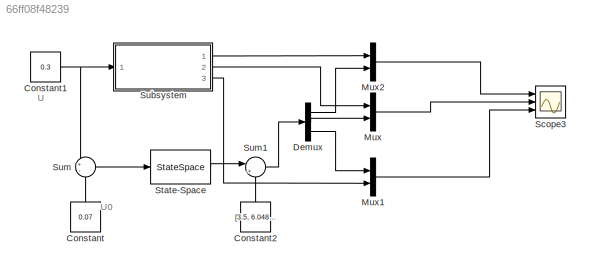
MODEL slx_66ff08f48239
KIND model
CONFIG AbsTol = auto
CONFIG EnableMultiTasking = off
CONFIG FixedStep = 0.148852529274642
CONFIG MaxStep = auto
CONFIG MinStep = auto
CONFIG RelTol = 1e-3
CONFIG SampleTimeConstraint = Unconstrained
CONFIG SolverName = VariableStepAuto
CONFIG StartTime = 0.0
CONFIG StopTime = 100
WORKSPACE source: mxarray member
WORKSPACE ca = 0.02
WORKSPACE cb = 0.2
WORKSPACE ea = 0.06
WORKSPACE eb = 0.02
WORKSPACE pa = 6.5
WORKSPACE pb = 6.5
WORKSPACE u = 0.105
WORKSPACE v = 7.5
BLOCK [Constant] Constant
  NameLocation = right
  Value = 0.07
BLOCK [Constant] Constant1
  Value = 0.3
BLOCK [Constant] Constant2
  NameLocation = right
  Value = [3.5, 6.0487, 0.4513]
BLOCK [Demux] Demux
  Outputs = 3
  Ports = [1, 3]
BLOCK [Mux] Mux
  DisplayOption = bar
  Inputs = 2
  Ports = [2, 1]
BLOCK [Mux] Mux1
  DisplayOption = bar
  Inputs = 2
  Ports = [2, 1]
BLOCK [Mux] Mux2
  DisplayOption = bar
  Inputs = 2
  Ports = [2, 1]
BLOCK [Scope] Scope3
  Floating = off
  NumInputPorts = 3
  Ports = [3]
  ScopeSpecificationString = Simulink.scopes.TimeScopeBlockCfg('CurrentConfiguration', extmgr.ConfigurationSet(extmgr.Configuration('Core','General UI',true),extmgr.Configuration('Core','Source UI',true),extmgr.Configuration('Sources','WiredSimulink',true,'DataLoggingVariableName','ScopeData1'),extmgr.Configuration('Visuals','Time Domain',true,'SerializedDisplays',{struct('MinYLimReal','-11.32442','MaxYLimReal','22.02478','YL...<+1627ch>
BLOCK [StateSpace] State-Space
  A = [0, 0.07, 0.07; -0.121, 0.0003, 1.2097; 0.121, -0.0703, -1.2797]
  AllowTunableDMatrix = on
  B = [-3.5; 0; 3.5]
  C = [1, 0, 0 ; 0, 1, 0; 0, 0, 1]
  D = [0; 0; 0]
  InitialCondition = [0,0,0]
  Ports = [1, 1]
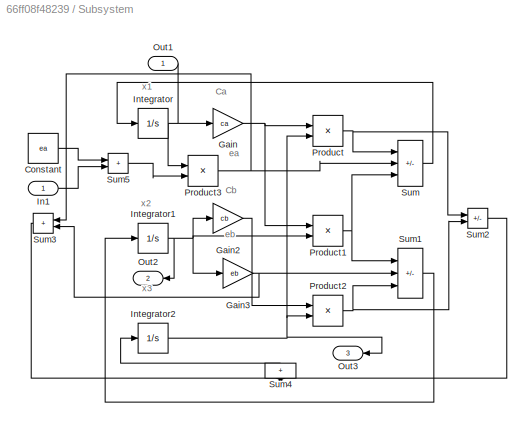
BLOCK [SubSystem] Subsystem
  Ports = [1, 3]
  RequestExecContextInheritance = off
BLOCK [Constant] Subsystem/Constant
  Value = ea
BLOCK [Gain] Subsystem/Gain
  Gain = ca
BLOCK [Gain] Subsystem/Gain2
  Gain = cb
BLOCK [Gain] Subsystem/Gain3
  Gain = eb
BLOCK [Inport] Subsystem/In1
BLOCK [Integrator] Subsystem/Integrator
  InitialCondition = pa
  LimitOutput = on
  LowerSaturationLimit = 0
  Ports = [1, 1]
BLOCK [Integrator] Subsystem/Integrator1
  InitialCondition = pb
  LimitOutput = on
  LowerSaturationLimit = 0
  Ports = [1, 1]
BLOCK [Integrator] Subsystem/Integrator2
  InitialCondition = v
  LimitOutput = on
  LowerSaturationLimit = 0
  Ports = [1, 1]
BLOCK [Outport] Subsystem/Out1
BLOCK [Outport] Subsystem/Out2
  Port = 2
BLOCK [Outport] Subsystem/Out3
  Port = 3
BLOCK [Product] Subsystem/Product
  Ports = [2, 1]
BLOCK [Product] Subsystem/Product1
  Ports = [2, 1]
BLOCK [Product] Subsystem/Product2
  Ports = [2, 1]
BLOCK [Product] Subsystem/Product3
  Ports = [2, 1]
BLOCK [Sum] Subsystem/Sum
  IconShape = rectangular
  Inputs = +-+
  Ports = [3, 1]
BLOCK [Sum] Subsystem/Sum1
  IconShape = rectangular
  Inputs = --+
  Ports = [3, 1]
BLOCK [Sum] Subsystem/Sum2
  IconShape = rectangular
  Inputs = --
  Ports = [2, 1]
BLOCK [Sum] Subsystem/Sum3
  IconShape = rectangular
  NameLocation = top
  Ports = [2, 1]
BLOCK [Sum] Subsystem/Sum4
  IconShape = rectangular
  NameLocation = right
  Ports = [2, 1]
BLOCK [Sum] Subsystem/Sum5
  IconShape = rectangular
  Ports = [2, 1]
BLOCK [Sum] Sum
  Inputs = +-
  Ports = [2, 1]
BLOCK [Sum] Sum1
  Inputs = |++
  Ports = [2, 1]
ANNOTATION (root): U
ANNOTATION (root): U0
ANNOTATION Subsystem: Ca
ANNOTATION Subsystem: Cb
ANNOTATION Subsystem: ea
ANNOTATION Subsystem: eb
ANNOTATION Subsystem: x1
ANNOTATION Subsystem: x2
ANNOTATION Subsystem: x3
NET Constant1:1 -> Subsystem:1, Sum:1
LINE Constant2:1 -> Sum1:2
LINE Constant:1 -> Sum:2
LINE Demux:1 -> Mux2:2
LINE Demux:2 -> Mux:2
LINE Demux:3 -> Mux1:1
LINE Mux1:1 -> Scope3:3
LINE Mux2:1 -> Scope3:1
LINE Mux:1 -> Scope3:2
LINE State-Space:1 -> Sum1:1
LINE Subsystem/Constant:1 -> Subsystem/Sum5:1
LINE Subsystem/Gain2:1 -> Subsystem/Product2:1
NET Subsystem/Gain3:1 -> Subsystem/Sum1:2, Subsystem/Sum3:2
NET Subsystem/Gain:1 -> Subsystem/Product1:1, Subsystem/Product:1
LINE Subsystem/In1:1 -> Subsystem/Sum5:2
NET Subsystem/Integrator1:1 -> Subsystem/Gain2:1, Subsystem/Gain3:1, Subsystem/Out2:1, Subsystem/Product1:2
NET Subsystem/Integrator2:1 -> Subsystem/Out3:1, Subsystem/Product2:2, Subsystem/Product:2
NET Subsystem/Integrator:1 -> Subsystem/Gain:1, Subsystem/Out1:1, Subsystem/Product3:1
NET Subsystem/Product1:1 -> Subsystem/Sum1:1, Subsystem/Sum:3
NET Subsystem/Product2:1 -> Subsystem/Sum1:3, Subsystem/Sum2:2
NET Subsystem/Product3:1 -> Subsystem/Sum3:1, Subsystem/Sum:2
NET Subsystem/Product:1 -> Subsystem/Sum2:1, Subsystem/Sum:1
LINE Subsystem/Sum1:1 -> Subsystem/Integrator1:1
LINE Subsystem/Sum2:1 -> Subsystem/Sum4:2
LINE Subsystem/Sum3:1 -> Subsystem/Sum4:1
LINE Subsystem/Sum4:1 -> Subsystem/Integrator2:1
LINE Subsystem/Sum5:1 -> Subsystem/Product3:2
LINE Subsystem/Sum:1 -> Subsystem/Integrator:1
LINE Subsystem:1 -> Mux2:1
LINE Subsystem:2 -> Mux:1
LINE Subsystem:3 -> Mux1:2
LINE Sum1:1 -> Demux:1
LINE Sum:1 -> State-Space:1
note: NET lines group one-source signal fan-out (src -> all destinations, sorted); 1:1 wires keep LINE
